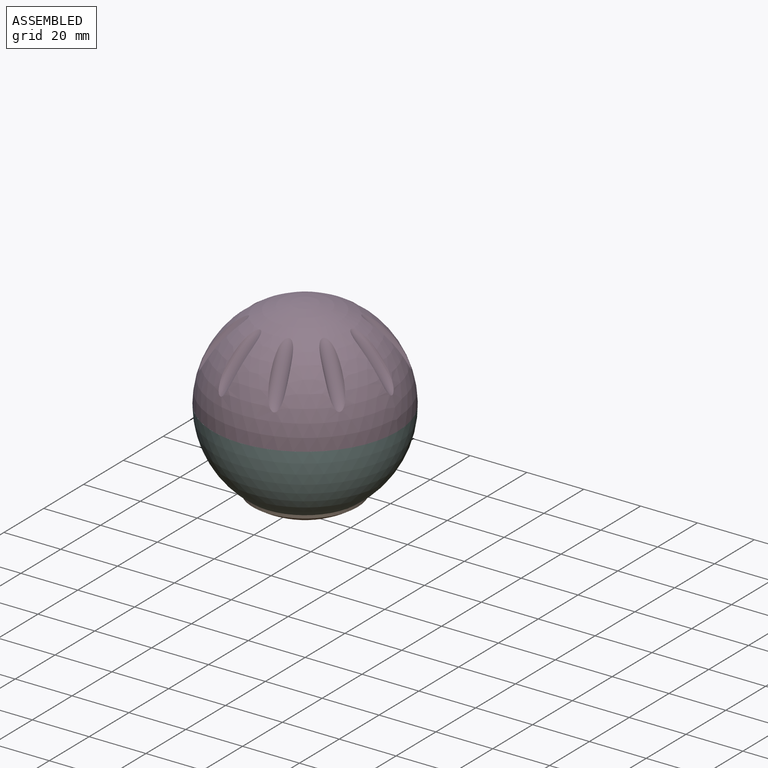
[diagram: assembled view]
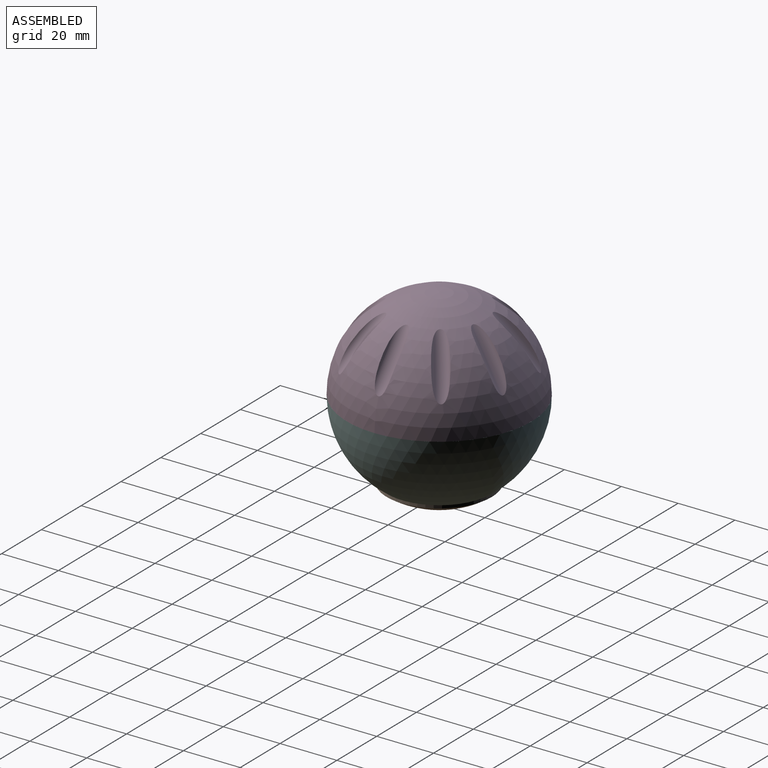
[diagram: assembled view, second angle]
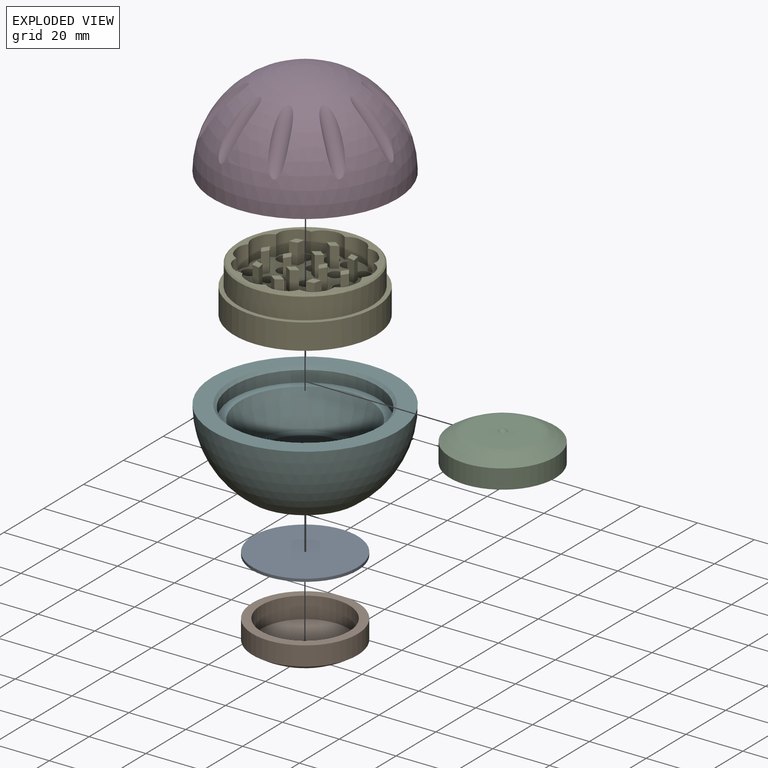
[diagram: exploded view]
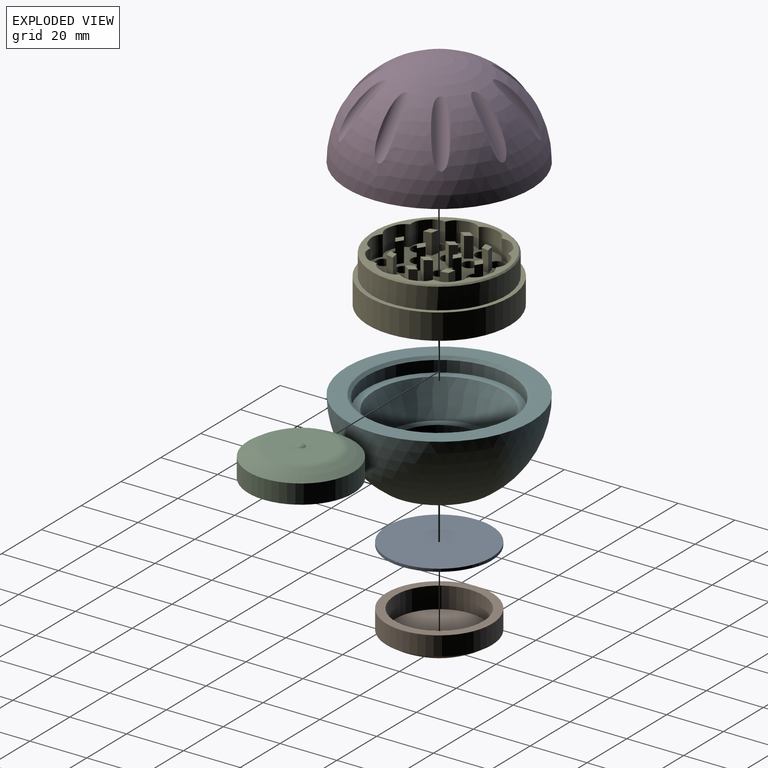
[diagram: exploded view, second angle]
ASSEMBLY  parts=6 mates=5
PART A: 3 faces, bbox 37x37x1 mm
  f0: cylinder r=18.5mm len=37mm, axis (0,0,-1), area 116.2mm2, adj f1,f2
  f1: plane 37x37mm, normal (0,0,1), area 1075.2mm2, adj f0
  f2: plane 37x37mm, normal (0,0,-1), area 1075.2mm2, adj f0
PART B: 8 faces, bbox 37x37x10.8 mm
  f0: cylinder r=18.5mm len=37mm, axis (0,0,-1), area 784.6mm2, adj f1,f4
  f1: plane 37x37mm, normal (0,0,-1), area 320.4mm2, adj f0,f2
  f2: cylinder r=15.5mm len=31mm, axis (0,0,-1), area 730.4mm2, adj f1,f3
  f3: plane 31x31mm, normal (0,0,-1), area 754.8mm2, adj f2
  f4: sphere r=32.5mm, area 569.8mm2, adj f0,f7
  f5: plane 23.04x23.04mm, normal (0,0,1), area 409.9mm2, adj f6,f7
  f6: sphere r=1.88mm, area 8.8mm2, adj f5
  f7: torus R=11.52mm, axis (0,0,1), area 170.9mm2, adj f4,f5
PART C: same geometry as B
PART D: 105 faces, bbox 65x65x32.5 mm
  f0: sphere r=32.5mm, area 5581.5mm2, adj f1,f95,f96,f97,f98,f99,f100,f101
  f1: plane 65x65mm, normal (0,0,-1), area 1194.6mm2, adj f0,f2
  f2: cylinder r=26mm len=52mm, axis (0,0,1), area 735.1mm2, adj f1,f5
  f3: plane 49x49mm, normal (0,0,-1), area 1736.2mm2, adj f4,f6,f7,f8,f9,f10,f11,f14
  f4: cylinder r=24.5mm len=49mm, axis (0,0,1), area 1231.5mm2, adj f3,f5
  f5: plane 52x52mm, normal (0,0,-1), area 238mm2, adj f2,f4
  f6: plane 7.25x4mm, normal (0,1,0), area 29mm2, adj f3,f7,f11,f12
  f7: plane 7.25x3.46mm, normal (0.87,0.5,0), area 29mm2, adj f3,f6,f8,f12
  f8: plane 7.25x3.46mm, normal (0.87,-0.5,0), area 29mm2, adj f3,f7,f9,f12
  f9: plane 7.25x4mm, normal (0,-1,0), area 29mm2, adj f3,f8,f10,f12
  f10: plane 7.25x3.46mm, normal (-0.87,-0.5,0), area 29mm2, adj f3,f9,f11,f12
  f11: plane 7.25x3.46mm, normal (-0.87,0.5,0), area 29mm2, adj f3,f6,f10,f12
  f12: plane 8x6.93mm, normal (0,0,-1), area 25.7mm2, adj f6,f7,f8,f9,f10,f11,f93
  f13: plane 3.64x2.65mm, normal (0,0,-1), area 6.7mm2, adj f14,f15,f16,f17
  f14: plane 7.25x2.7mm, normal (1,0.04,0), area 19.6mm2, adj f3,f13,f15,f16
  f15: plane 7.25x2.54mm, normal (-0.35,-0.94,0), area 19.6mm2, adj f3,f13,f14,f17
  f16: plane 7.25x2.54mm, normal (0.35,0.94,0), area 19.6mm2, adj f3,f13,f14,f17
  f17: plane 7.25x2.7mm, normal (-1,-0.04,0), area 19.6mm2, adj f3,f13,f15,f16
  f18: plane 4.28x2.85mm, normal (0,0,-1), area 6.7mm2, adj f19,f20,f21,f22
  f19: plane 7.25x2.12mm, normal (0.78,0.62,0), area 19.6mm2, adj f3,f18,f20,f21
  f20: plane 7.25x2.6mm, normal (0.27,-0.96,0), area 19.6mm2, adj f3,f18,f19,f22
  f21: plane 7.25x2.6mm, normal (-0.27,0.96,0), area 19.6mm2, adj f3,f18,f19,f22
  f22: plane 7.25x2.12mm, normal (-0.78,-0.62,0), area 19.6mm2, adj f3,f18,f20,f21
  f23: plane 4.28x2.85mm, normal (0,0,-1), area 6.7mm2, adj f24,f25,f26,f27
  f24: plane 7.25x2.6mm, normal (0.27,0.96,0), area 19.6mm2, adj f3,f23,f25,f26
  f25: plane 7.25x2.12mm, normal (0.78,-0.62,0), area 19.6mm2, adj f3,f23,f24,f27
  f26: plane 7.25x2.12mm, normal (-0.78,0.62,0), area 19.6mm2, adj f3,f23,f24,f27
  f27: plane 7.25x2.6mm, normal (-0.27,-0.96,0), area 19.6mm2, adj f3,f23,f25,f26
  f28: plane 4.5x3mm, normal (0,0,-1), area 6.7mm2, adj f29,f30,f31,f32
  f29: plane 7.25x2.25mm, normal (-0.83,0.55,0), area 19.6mm2, adj f3,f28,f30,f31
  f30: plane 7.25x2.25mm, normal (0.83,0.55,0), area 19.6mm2, adj f3,f28,f29,f32
  f31: plane 7.25x2.25mm, normal (-0.83,-0.55,0), area 19.6mm2, adj f3,f28,f29,f32
  f32: plane 7.25x2.25mm, normal (0.83,-0.55,0), area 19.6mm2, adj f3,f28,f30,f31
  f33: plane 3.64x2.65mm, normal (0,0,-1), area 6.7mm2, adj f34,f35,f36,f37
  f34: plane 7.25x2.54mm, normal (-0.35,0.94,0), area 19.6mm2, adj f3,f33,f35,f36
  f35: plane 7.25x2.7mm, normal (1,-0.04,0), area 19.6mm2, adj f3,f33,f34,f37
  f36: plane 7.25x2.7mm, normal (-1,0.04,0), area 19.6mm2, adj f3,f33,f34,f37
  f37: plane 7.25x2.54mm, normal (0.35,-0.94,0), area 19.6mm2, adj f3,f33,f35,f36
  f38: plane 3.64x2.65mm, normal (0,0,-1), area 6.7mm2, adj f39,f40,f41,f42
  f39: plane 7.25x2.7mm, normal (-1,-0.04,0), area 19.6mm2, adj f3,f38,f40,f41
  f40: plane 7.25x2.54mm, normal (0.35,0.94,0), area 19.6mm2, adj f3,f38,f39,f42
  f41: plane 7.25x2.54mm, normal (-0.35,-0.94,0), area 19.6mm2, adj f3,f38,f39,f42
  f42: plane 7.25x2.7mm, normal (1,0.04,0), area 19.6mm2, adj f3,f38,f40,f41
  f43: plane 3.9x2.6mm, normal (0,0,-1), area 6.7mm2, adj f44,f45,f46,f47
  f44: plane 7.25x2.7mm, normal (0.06,-1,0), area 19.6mm2, adj f3,f43,f45,f46
  f45: plane 7.25x2.42mm, normal (-0.9,-0.44,0), area 19.6mm2, adj f3,f43,f44,f47
  f46: plane 7.25x2.42mm, normal (0.9,0.44,0), area 19.6mm2, adj f3,f43,f44,f47
  f47: plane 7.25x2.7mm, normal (-0.06,1,0), area 19.6mm2, adj f3,f43,f45,f46
  f48: plane 4.28x2.85mm, normal (0,0,-1), area 6.7mm2, adj f49,f50,f51,f52
  f49: plane 7.25x2.12mm, normal (-0.78,-0.62,0), area 19.6mm2, adj f3,f48,f50,f51
  f50: plane 7.25x2.6mm, normal (-0.27,0.96,0), area 19.6mm2, adj f3,f48,f49,f52
  f51: plane 7.25x2.6mm, normal (0.27,-0.96,0), area 19.6mm2, adj f3,f48,f49,f52
  f52: plane 7.25x2.12mm, normal (0.78,0.62,0), area 19.6mm2, adj f3,f48,f50,f51
  f53: plane 3.64x2.65mm, normal (0,0,-1), area 6.7mm2, adj f54,f55,f56,f57
  f54: plane 7.25x2.54mm, normal (0.35,-0.94,0), area 19.6mm2, adj f3,f53,f55,f56
  f55: plane 7.25x2.7mm, normal (-1,0.04,0), area 19.6mm2, adj f3,f53,f54,f57
  f56: plane 7.25x2.7mm, normal (1,-0.04,0), area 19.6mm2, adj f3,f53,f54,f57
  f57: plane 7.25x2.54mm, normal (-0.35,0.94,0), area 19.6mm2, adj f3,f53,f55,f56
  f58: plane 4.5x3mm, normal (0,0,-1), area 6.7mm2, adj f59,f60,f61,f62
  f59: plane 7.25x2.25mm, normal (0.83,-0.55,0), area 19.6mm2, adj f3,f58,f60,f61
  f60: plane 7.25x2.25mm, normal (-0.83,-0.55,0), area 19.6mm2, adj f3,f58,f59,f62
  f61: plane 7.25x2.25mm, normal (0.83,0.55,0), area 19.6mm2, adj f3,f58,f59,f62
  f62: plane 7.25x2.25mm, normal (-0.83,0.55,0), area 19.6mm2, adj f3,f58,f60,f61
  f63: plane 4.28x2.85mm, normal (0,0,-1), area 6.7mm2, adj f64,f65,f66,f67
  f64: plane 7.25x2.6mm, normal (-0.27,-0.96,0), area 19.6mm2, adj f3,f63,f65,f66
  f65: plane 7.25x2.12mm, normal (-0.78,0.62,0), area 19.6mm2, adj f3,f63,f64,f67
  f66: plane 7.25x2.12mm, normal (0.78,-0.62,0), area 19.6mm2, adj f3,f63,f64,f67
  f67: plane 7.25x2.6mm, normal (0.27,0.96,0), area 19.6mm2, adj f3,f63,f65,f66
  f68: plane 3.9x2.6mm, normal (0,0,-1), area 6.8mm2, adj f69,f70,f71,f72
  f69: plane 7.25x2.42mm, normal (0.9,-0.44,0), area 19.6mm2, adj f3,f68,f70,f71
  f70: plane 7.25x2.7mm, normal (-0.06,-1,0), area 19.6mm2, adj f3,f68,f69,f72
  f71: plane 7.25x2.7mm, normal (0.06,1,0), area 19.6mm2, adj f3,f68,f69,f72
  f72: plane 7.25x2.42mm, normal (-0.9,0.44,0), area 19.6mm2, adj f3,f68,f70,f71
  f73: plane 4.5x3mm, normal (0,0,-1), area 6.8mm2, adj f74,f75,f76,f77
  f74: plane 7.25x2.25mm, normal (-0.83,-0.55,0), area 19.6mm2, adj f3,f73,f75,f76
  f75: plane 7.25x2.25mm, normal (-0.83,0.55,0), area 19.6mm2, adj f3,f73,f74,f77
  f76: plane 7.25x2.25mm, normal (0.83,-0.55,0), area 19.6mm2, adj f3,f73,f74,f77
  f77: plane 7.25x2.25mm, normal (0.83,0.55,0), area 19.6mm2, adj f3,f73,f75,f76
  f78: plane 3.9x2.6mm, normal (0,0,-1), area 6.7mm2, adj f79,f80,f81,f82
  f79: plane 7.25x2.7mm, normal (-0.06,1,0), area 19.6mm2, adj f3,f78,f80,f81
  f80: plane 7.25x2.42mm, normal (0.9,0.44,0), area 19.6mm2, adj f3,f78,f79,f82
  f81: plane 7.25x2.42mm, normal (-0.9,-0.44,0), area 19.6mm2, adj f3,f78,f79,f82
  f82: plane 7.25x2.7mm, normal (0.06,-1,0), area 19.6mm2, adj f3,f78,f80,f81
  f83: plane 4.5x3mm, normal (0,0,-1), area 6.8mm2, adj f84,f85,f86,f87
  f84: plane 7.25x2.25mm, normal (0.83,0.55,0), area 19.6mm2, adj f3,f83,f85,f86
  f85: plane 7.25x2.25mm, normal (0.83,-0.55,0), area 19.6mm2, adj f3,f83,f84,f87
  f86: plane 7.25x2.25mm, normal (-0.83,0.55,0), area 19.6mm2, adj f3,f83,f84,f87
  f87: plane 7.25x2.25mm, normal (-0.83,-0.55,0), area 19.6mm2, adj f3,f83,f85,f86
  f88: plane 3.9x2.6mm, normal (0,0,-1), area 6.8mm2, adj f89,f90,f91,f92
  f89: plane 7.25x2.42mm, normal (-0.9,0.44,0), area 19.6mm2, adj f3,f88,f90,f91
  f90: plane 7.25x2.7mm, normal (0.06,1,0), area 19.6mm2, adj f3,f88,f89,f92
  f91: plane 7.25x2.7mm, normal (-0.06,-1,0), area 19.6mm2, adj f3,f88,f89,f92
  f92: plane 7.25x2.42mm, normal (0.9,-0.44,0), area 19.6mm2, adj f3,f88,f90,f91
  f93: cylinder r=2.25mm len=7.25mm, axis (0,0,1), area 102.5mm2, adj f12,f94
  f94: plane 4.5x4.5mm, normal (0,0,-1), area 15.9mm2, adj f93
  f95: cylinder r=3mm len=18.41mm, axis (-0.64,0,-0.77), area 123.7mm2, adj f0
  f96: cylinder r=3mm len=18.41mm, axis (0.2,-0.61,-0.77), area 123.9mm2, adj f0
  f97: cylinder r=3mm len=18.41mm, axis (0.64,0,-0.77), area 123.8mm2, adj f0
  f98: cylinder r=3mm len=18.41mm, axis (0.52,-0.38,-0.77), area 123.8mm2, adj f0
  f99: cylinder r=3mm len=18.41mm, axis (-0.2,-0.61,-0.77), area 123.6mm2, adj f0
  f100: cylinder r=3mm len=18.41mm, axis (-0.52,-0.38,-0.77), area 123.7mm2, adj f0
  f101: cylinder r=3mm len=18.41mm, axis (-0.2,0.61,-0.77), area 123.9mm2, adj f0
  f102: cylinder r=3mm len=18.41mm, axis (0.2,0.61,-0.77), area 123.6mm2, adj f0
  f103: cylinder r=3mm len=18.41mm, axis (-0.52,0.38,-0.77), area 123.8mm2, adj f0
  f104: cylinder r=3mm len=18.41mm, axis (0.52,0.38,-0.77), area 123.7mm2, adj f0
PART E: 158 faces, bbox 50x17x50 mm
  f0: cylinder r=2.5mm len=5mm, axis (0,-1,0), area 35.3mm2, adj f25,f151
  f1: cylinder r=2.5mm len=5mm, axis (0,-1,0), area 35.3mm2, adj f25,f151
  f2: cylinder r=2.5mm len=5mm, axis (0,-1,0), area 35.3mm2, adj f25,f151
  f3: cylinder r=2.5mm len=5mm, axis (0,-1,0), area 35.3mm2, adj f25,f151
  f4: cylinder r=2.5mm len=5mm, axis (0,-1,0), area 35.3mm2, adj f25,f151
  f5: cylinder r=2.5mm len=5mm, axis (0,-1,0), area 35.3mm2, adj f25,f151
  f6: cylinder r=2.5mm len=5mm, axis (0,-1,0), area 35.3mm2, adj f25,f151
  f7: cylinder r=2.5mm len=5mm, axis (0,-1,0), area 35.3mm2, adj f25,f151
  f8: cylinder r=2.5mm len=5mm, axis (0,-1,0), area 35.3mm2, adj f25,f151
  f9: cylinder r=2.5mm len=5mm, axis (0,-1,0), area 35.3mm2, adj f25,f151
  f10: cylinder r=2.5mm len=5mm, axis (0,-1,0), area 35.3mm2, adj f25,f151
  f11: cylinder r=2.5mm len=5mm, axis (0,-1,0), area 35.3mm2, adj f25,f151
  f12: cylinder r=2.5mm len=5mm, axis (0,-1,0), area 35.3mm2, adj f25,f151
  f13: cylinder r=2.5mm len=5mm, axis (0,-1,0), area 35.3mm2, adj f25,f151
  f14: cylinder r=2.5mm len=5mm, axis (0,-1,0), area 35.3mm2, adj f25,f151
  f15: cylinder r=2.5mm len=5mm, axis (0,-1,0), area 35.3mm2, adj f25,f151
  f16: cylinder r=2.5mm len=5mm, axis (0,-1,0), area 35.3mm2, adj f25,f151
  f17: cylinder r=2.5mm len=5mm, axis (0,-1,0), area 35.3mm2, adj f25,f151
  f18: cylinder r=2.5mm len=5mm, axis (0,-1,0), area 35.3mm2, adj f25,f151
  f19: cylinder r=2.5mm len=5mm, axis (0,-1,0), area 35.3mm2, adj f25,f151
  f20: cylinder r=2.5mm len=5mm, axis (0,-1,0), area 35.3mm2, adj f25,f151
  f21: cylinder r=2.5mm len=5mm, axis (0,-1,0), area 35.3mm2, adj f25,f151
  f22: cylinder r=2.5mm len=5mm, axis (0,-1,0), area 35.3mm2, adj f25,f151
  f23: cylinder r=2.5mm len=5mm, axis (0,-1,0), area 35.3mm2, adj f25,f151
  f24: cylinder r=2.25mm len=4.5mm, axis (0,-1,0), area 31.8mm2, adj f25,f157
  f25: plane 42.28x42.28mm, normal (0,-1,0), area 827.3mm2, adj f0,f1,f2,f3,f4,f5,f6,f7
  f26: cylinder r=21.5mm len=7.25mm, axis (0,-1,0), area 16.1mm2, adj f25,f41,f145,f148
  f27: cylinder r=21.5mm len=7.25mm, axis (0,-1,0), area 16.1mm2, adj f25,f41,f147,f150
  f28: cylinder r=21.5mm len=7.25mm, axis (0,-1,0), area 16.1mm2, adj f25,f41,f143,f146
  f29: cylinder r=21.5mm len=7.25mm, axis (0,-1,0), area 16.1mm2, adj f25,f41,f139,f142
  f30: cylinder r=21.5mm len=7.25mm, axis (0,-1,0), area 16.1mm2, adj f25,f41,f141,f144
  f31: cylinder r=21.5mm len=7.25mm, axis (0,-1,0), area 16.1mm2, adj f25,f41,f137,f140
  f32: cylinder r=21.5mm len=7.25mm, axis (0,-1,0), area 16.1mm2, adj f25,f41,f131,f134
  f33: cylinder r=21.5mm len=7.25mm, axis (0,-1,0), area 16.1mm2, adj f25,f41,f135,f138
  f34: cylinder r=21.5mm len=7.25mm, axis (0,-1,0), area 16.1mm2, adj f25,f41,f133,f136
  f35: cylinder r=21.5mm len=7.25mm, axis (0,-1,0), area 16.1mm2, adj f25,f41,f129,f132
  f36: cylinder r=21.5mm len=7.25mm, axis (0,-1,0), area 16.1mm2, adj f25,f41,f127,f130
  f37: cylinder r=25mm len=50mm, axis (0,-1,0), area 1413.7mm2, adj f38,f40
  f38: plane 50x50mm, normal (0,1,0), area 228.6mm2, adj f37,f154
  f39: cylinder r=23.5mm len=47mm, axis (0,-1,0), area 1107.4mm2, adj f40,f153
  f40: plane 50x50mm, normal (0,-1,0), area 228.6mm2, adj f37,f39
  f41: plane 46x46mm, normal (0,-1,0), area 266.5mm2, adj f26,f27,f28,f29,f30,f31,f32,f33
  f42: cylinder r=21.5mm len=7.25mm, axis (0,-1,0), area 16.1mm2, adj f25,f41,f128,f149
  f43: plane 4.5x3mm, normal (0,-1,0), area 6.7mm2, adj f44,f45,f46,f47
  f44: plane 7.25x2.25mm, normal (-0.55,0,0.83), area 19.6mm2, adj f25,f43,f45,f46
  f45: plane 7.25x2.25mm, normal (-0.55,0,-0.83), area 19.6mm2, adj f25,f43,f44,f47
  f46: plane 7.25x2.25mm, normal (0.55,0,0.83), area 19.6mm2, adj f25,f43,f44,f47
  f47: plane 7.25x2.25mm, normal (0.55,0,-0.83), area 19.6mm2, adj f25,f43,f45,f46
  f48: plane 4.5x3mm, normal (0,-1,0), area 6.8mm2, adj f49,f50,f51,f52
  f49: plane 7.25x2.25mm, normal (0.83,0,0.55), area 19.6mm2, adj f25,f48,f50,f51
  f50: plane 7.25x2.25mm, normal (-0.83,0,0.55), area 19.6mm2, adj f25,f48,f49,f52
  f51: plane 7.25x2.25mm, normal (0.83,0,-0.55), area 19.6mm2, adj f25,f48,f49,f52
  f52: plane 7.25x2.25mm, normal (-0.83,0,-0.55), area 19.6mm2, adj f25,f48,f50,f51
  f53: plane 4.5x3mm, normal (0,-1,0), area 6.8mm2, adj f54,f55,f56,f57
  f54: plane 7.25x2.25mm, normal (0.55,0,-0.83), area 19.6mm2, adj f25,f53,f55,f56
  f55: plane 7.25x2.25mm, normal (0.55,0,0.83), area 19.6mm2, adj f25,f53,f54,f57
  f56: plane 7.25x2.25mm, normal (-0.55,0,-0.83), area 19.6mm2, adj f25,f53,f54,f57
  f57: plane 7.25x2.25mm, normal (-0.55,0,0.83), area 19.6mm2, adj f25,f53,f55,f56
  f58: plane 4.5x3mm, normal (0,-1,0), area 6.8mm2, adj f59,f60,f61,f62
  f59: plane 7.25x2.25mm, normal (-0.55,0,0.83), area 19.6mm2, adj f25,f58,f60,f61
  f60: plane 7.25x2.25mm, normal (-0.55,0,-0.83), area 19.6mm2, adj f25,f58,f59,f62
  f61: plane 7.25x2.25mm, normal (0.55,0,0.83), area 19.6mm2, adj f25,f58,f59,f62
  f62: plane 7.25x2.25mm, normal (0.55,0,-0.83), area 19.6mm2, adj f25,f58,f60,f61
  f63: plane 3.18x3.18mm, normal (0,-1,0), area 6.7mm2, adj f64,f65,f66,f67
  f64: plane 7.25x2.65mm, normal (-0.98,0,0.2), area 19.6mm2, adj f25,f63,f65,f66
  f65: plane 7.25x2.65mm, normal (0.2,0,-0.98), area 19.6mm2, adj f25,f63,f64,f67
  f66: plane 7.25x2.65mm, normal (-0.2,0,0.98), area 19.6mm2, adj f25,f63,f64,f67
  f67: plane 7.25x2.65mm, normal (0.98,0,-0.2), area 19.6mm2, adj f25,f63,f65,f66
  f68: plane 3.18x3.18mm, normal (0,-1,0), area 6.7mm2, adj f69,f70,f71,f72
  f69: plane 7.25x2.65mm, normal (0.2,0,0.98), area 19.6mm2, adj f25,f68,f70,f71
  f70: plane 7.25x2.65mm, normal (-0.98,0,-0.2), area 19.6mm2, adj f25,f68,f69,f72
  f71: plane 7.25x2.65mm, normal (0.98,0,0.2), area 19.6mm2, adj f25,f68,f69,f72
  f72: plane 7.25x2.65mm, normal (-0.2,0,-0.98), area 19.6mm2, adj f25,f68,f70,f71
  f73: plane 4.5x3mm, normal (0,-1,0), area 6.7mm2, adj f74,f75,f76,f77
  f74: plane 7.25x2.25mm, normal (0.83,0,0.55), area 19.6mm2, adj f25,f73,f75,f76
  f75: plane 7.25x2.25mm, normal (-0.83,0,0.55), area 19.6mm2, adj f25,f73,f74,f77
  f76: plane 7.25x2.25mm, normal (0.83,0,-0.55), area 19.6mm2, adj f25,f73,f74,f77
  f77: plane 7.25x2.25mm, normal (-0.83,0,-0.55), area 19.6mm2, adj f25,f73,f75,f76
  f78: plane 3.18x3.18mm, normal (0,-1,0), area 6.7mm2, adj f79,f80,f81,f82
  f79: plane 7.25x2.65mm, normal (0.98,0,-0.2), area 19.6mm2, adj f25,f78,f80,f81
  f80: plane 7.25x2.65mm, normal (-0.2,0,0.98), area 19.6mm2, adj f25,f78,f79,f82
  f81: plane 7.25x2.65mm, normal (0.2,0,-0.98), area 19.6mm2, adj f25,f78,f79,f82
  f82: plane 7.25x2.65mm, normal (-0.98,0,0.2), area 19.6mm2, adj f25,f78,f80,f81
  f83: plane 4.5x3mm, normal (0,-1,0), area 6.7mm2, adj f84,f85,f86,f87
  f84: plane 7.25x2.25mm, normal (0.55,0,-0.83), area 19.6mm2, adj f25,f83,f85,f86
  f85: plane 7.25x2.25mm, normal (0.55,0,0.83), area 19.6mm2, adj f25,f83,f84,f87
  f86: plane 7.25x2.25mm, normal (-0.55,0,-0.83), area 19.6mm2, adj f25,f83,f84,f87
  f87: plane 7.25x2.25mm, normal (-0.55,0,0.83), area 19.6mm2, adj f25,f83,f85,f86
  f88: plane 4.5x3mm, normal (0,-1,0), area 6.7mm2, adj f89,f90,f91,f92
  f89: plane 7.25x2.25mm, normal (-0.83,0,-0.55), area 19.6mm2, adj f25,f88,f90,f91
  f90: plane 7.25x2.25mm, normal (0.83,0,-0.55), area 19.6mm2, adj f25,f88,f89,f92
  f91: plane 7.25x2.25mm, normal (-0.83,0,0.55), area 19.6mm2, adj f25,f88,f89,f92
  f92: plane 7.25x2.25mm, normal (0.83,0,0.55), area 19.6mm2, adj f25,f88,f90,f91
  f93: plane 7.25x0.65mm, normal (0.44,0,-0.9), area 5.3mm2, adj f25,f41,f94,f128
  f94: plane 7.25x0.73mm, normal (1,0,0.06), area 5.3mm2, adj f25,f41,f93,f127
  f95: plane 7.25x0.73mm, normal (-0.06,0,-1), area 5.3mm2, adj f25,f41,f96,f130
  f96: plane 7.25x0.65mm, normal (0.9,0,-0.44), area 5.3mm2, adj f25,f41,f95,f129
  f97: plane 7.25x0.61mm, normal (-0.55,0,-0.83), area 5.3mm2, adj f25,f41,f98,f132
  f98: plane 7.25x0.61mm, normal (0.55,0,-0.83), area 5.3mm2, adj f25,f41,f97,f131
  f99: plane 7.25x0.73mm, normal (-1,0,0.06), area 5.3mm2, adj f25,f41,f100,f136
  f100: plane 7.25x0.65mm, normal (-0.44,0,-0.9), area 5.3mm2, adj f25,f41,f99,f135
  f101: plane 7.25x0.61mm, normal (-0.83,0,0.55), area 5.3mm2, adj f25,f41,f102,f138
  f102: plane 7.25x0.61mm, normal (-0.83,0,-0.55), area 5.3mm2, adj f25,f41,f101,f137
  f103: plane 7.25x0.65mm, normal (-0.9,0,-0.44), area 5.3mm2, adj f25,f41,f104,f134
  f104: plane 7.25x0.73mm, normal (0.06,0,-1), area 5.3mm2, adj f25,f41,f103,f133
  f105: plane 7.25x0.65mm, normal (-0.44,0,0.9), area 5.3mm2, adj f25,f41,f106,f140
  f106: plane 7.25x0.73mm, normal (-1,0,-0.06), area 5.3mm2, adj f25,f41,f105,f139
  f107: plane 7.25x0.61mm, normal (0.55,0,0.83), area 5.3mm2, adj f25,f41,f108,f144
  f108: plane 7.25x0.61mm, normal (-0.55,0,0.83), area 5.3mm2, adj f25,f41,f107,f143
  f109: plane 7.25x0.73mm, normal (0.06,0,1), area 5.3mm2, adj f25,f41,f110,f142
  f110: plane 7.25x0.65mm, normal (-0.9,0,0.44), area 5.3mm2, adj f25,f41,f109,f141
  f111: plane 7.25x0.65mm, normal (0.9,0,0.44), area 5.3mm2, adj f25,f41,f112,f146
  f112: plane 7.25x0.73mm, normal (-0.06,0,1), area 5.3mm2, adj f25,f41,f111,f145
  f113: plane 7.25x0.61mm, normal (0.83,0,-0.55), area 5.3mm2, adj f25,f41,f114,f150
  f114: plane 7.25x0.61mm, normal (0.83,0,0.55), area 5.3mm2, adj f25,f41,f113,f149
  f115: plane 7.25x0.73mm, normal (1,0,-0.06), area 5.3mm2, adj f25,f41,f116,f148
  f116: plane 7.25x0.65mm, normal (0.44,0,0.9), area 5.3mm2, adj f25,f41,f115,f147
  f117: plane 4.5x3mm, normal (0,-1,0), area 6.8mm2, adj f118,f119,f120,f121
  f118: plane 7.25x2.25mm, normal (-0.83,0,-0.55), area 19.6mm2, adj f25,f117,f119,f120
  f119: plane 7.25x2.25mm, normal (0.83,0,-0.55), area 19.6mm2, adj f25,f117,f118,f121
  f120: plane 7.25x2.25mm, normal (-0.83,0,0.55), area 19.6mm2, adj f25,f117,f118,f121
  f121: plane 7.25x2.25mm, normal (0.83,0,0.55), area 19.6mm2, adj f25,f117,f119,f120
  f122: plane 3.18x3.18mm, normal (0,-1,0), area 6.7mm2, adj f123,f124,f125,f126
  f123: plane 7.25x2.65mm, normal (-0.2,0,-0.98), area 19.6mm2, adj f25,f122,f124,f125
  f124: plane 7.25x2.65mm, normal (0.98,0,0.2), area 19.6mm2, adj f25,f122,f123,f126
  f125: plane 7.25x2.65mm, normal (-0.98,0,-0.2), area 19.6mm2, adj f25,f122,f123,f126
  f126: plane 7.25x2.65mm, normal (0.2,0,0.98), area 19.6mm2, adj f25,f122,f124,f125
  f127: cylinder r=5.08mm len=7.25mm, axis (0,-1,0), area 29.4mm2, adj f25,f36,f41,f94
  f128: cylinder r=5.08mm len=7.25mm, axis (0,-1,0), area 29.4mm2, adj f25,f41,f42,f93
  f129: cylinder r=5.08mm len=7.25mm, axis (0,-1,0), area 29.4mm2, adj f25,f35,f41,f96
  f130: cylinder r=5.08mm len=7.25mm, axis (0,-1,0), area 29.4mm2, adj f25,f36,f41,f95
  f131: cylinder r=5.08mm len=7.25mm, axis (0,-1,0), area 29.4mm2, adj f25,f32,f41,f98
  f132: cylinder r=5.08mm len=7.25mm, axis (0,-1,0), area 29.4mm2, adj f25,f35,f41,f97
  f133: cylinder r=5.08mm len=7.25mm, axis (0,-1,0), area 29.4mm2, adj f25,f34,f41,f104
  f134: cylinder r=5.08mm len=7.25mm, axis (0,-1,0), area 29.4mm2, adj f25,f32,f41,f103
  f135: cylinder r=5.08mm len=7.25mm, axis (0,-1,0), area 29.4mm2, adj f25,f33,f41,f100
  f136: cylinder r=5.08mm len=7.25mm, axis (0,-1,0), area 29.4mm2, adj f25,f34,f41,f99
  f137: cylinder r=5.08mm len=7.25mm, axis (0,-1,0), area 29.4mm2, adj f25,f31,f41,f102
  f138: cylinder r=5.08mm len=7.25mm, axis (0,-1,0), area 29.4mm2, adj f25,f33,f41,f101
  f139: cylinder r=5.08mm len=7.25mm, axis (0,-1,0), area 29.4mm2, adj f25,f29,f41,f106
  f140: cylinder r=5.08mm len=7.25mm, axis (0,-1,0), area 29.4mm2, adj f25,f31,f41,f105
  f141: cylinder r=5.08mm len=7.25mm, axis (0,-1,0), area 29.4mm2, adj f25,f30,f41,f110
  f142: cylinder r=5.08mm len=7.25mm, axis (0,-1,0), area 29.4mm2, adj f25,f29,f41,f109
  f143: cylinder r=5.08mm len=7.25mm, axis (0,-1,0), area 29.4mm2, adj f25,f28,f41,f108
  f144: cylinder r=5.08mm len=7.25mm, axis (0,-1,0), area 29.4mm2, adj f25,f30,f41,f107
  f145: cylinder r=5.08mm len=7.25mm, axis (0,-1,0), area 29.4mm2, adj f25,f26,f41,f112
  f146: cylinder r=5.08mm len=7.25mm, axis (0,-1,0), area 29.4mm2, adj f25,f28,f41,f111
  f147: cylinder r=5.08mm len=7.25mm, axis (0,-1,0), area 29.4mm2, adj f25,f27,f41,f116
  f148: cylinder r=5.08mm len=7.25mm, axis (0,-1,0), area 29.4mm2, adj f25,f26,f41,f115
  f149: cylinder r=5.08mm len=7.25mm, axis (0,-1,0), area 29.4mm2, adj f25,f41,f42,f114
  f150: cylinder r=5.08mm len=7.25mm, axis (0,-1,0), area 29.4mm2, adj f25,f27,f41,f113
  f151: plane 46x46mm, normal (0,1,0), area 1013.9mm2, adj f0,f1,f2,f3,f4,f5,f6,f7
  f152: cylinder r=23mm len=46mm, axis (0,1,0), area 1011.6mm2, adj f151,f154
  f153: cone r=23mm half-angle=45deg, axis (0,1,0), area 103.3mm2, adj f39,f41
  f154: cone r=23mm half-angle=45deg, axis (0,1,0), area 103.3mm2, adj f38,f152
  f155: plane 4.5x4.5mm, normal (0,1,0), area 15.9mm2, adj f156
  f156: cone r=2.25mm half-angle=58.2deg, axis (0,-1,0), area 189.1mm2, adj f151,f155
  f157: plane 4.5x4.5mm, normal (0,-1,0), area 15.9mm2, adj f24
PART F: 10 faces, bbox 65x26.7x65 mm
  f0: plane 65x65mm, normal (0,-1,0), area 1112.1mm2, adj f1,f9
  f1: sphere r=32.5mm, area 5456.5mm2, adj f0,f2
  f2: cylinder r=18.5mm len=37mm, axis (0,-1,0), area 781.2mm2, adj f1,f3
  f3: plane 37x37mm, normal (0,1,0), area 320.4mm2, adj f2,f4
  f4: cylinder r=15.5mm len=31mm, axis (0,-1,0), area 292.2mm2, adj f3,f5
  f5: plane 37x37mm, normal (0,-1,0), area 320.4mm2, adj f4,f6
  f6: cone r=22.8mm half-angle=19.7deg, axis (0,-1,0), area 1653.9mm2, adj f5,f7
  f7: plane 51x51mm, normal (0,-1,0), area 409.7mm2, adj f6,f8
  f8: cylinder r=25.5mm len=51mm, axis (0,-1,0), area 640.9mm2, adj f7,f9
  f9: cone r=25.5mm half-angle=45deg, axis (0,-1,0), area 231mm2, adj f0,f8
PLACE A rot(axis=(1,0,0),180deg) t=(0,0,-20)mm
PLACE B rot(axis=(1,0,0),180deg) t=(0,0,-21)mm
PLACE C at identity
PLACE D at identity fixed
PLACE E rot(axis=(-0.58,0.58,-0.58),120deg) t=(0,0,12)mm
PLACE F rot(axis=(-1,0,0),90deg) t=(0,0,0)mm
MATE slider F.f2 <-> E.f24  axis (0,0,1) through (0,0,-3)mm
MATE planar E.f24 <-> F.f2  axis (0,0,-1) through (0,0,-5)mm
MATE fastened F.f2 <-> D.f2  axis (0,0,1) through (0,0,0)mm
MATE fastened A.f0 <-> F.f2  axis (0,0,1) through (0,0,-20)mm
MATE fastened B.f0 <-> A.f0  axis (0,0,1) through (0,0,-21)mm
